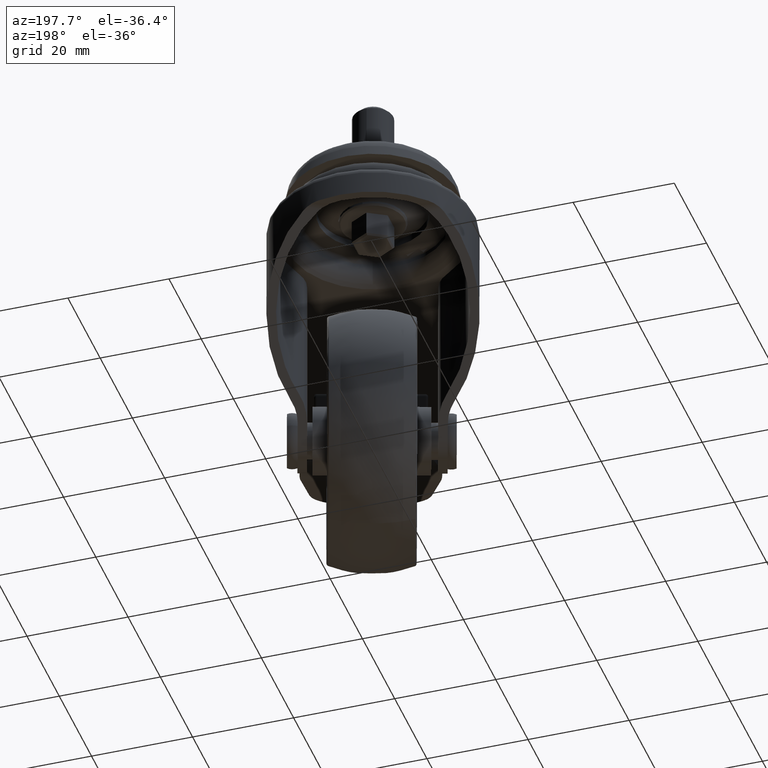
[diagram: clean part render]
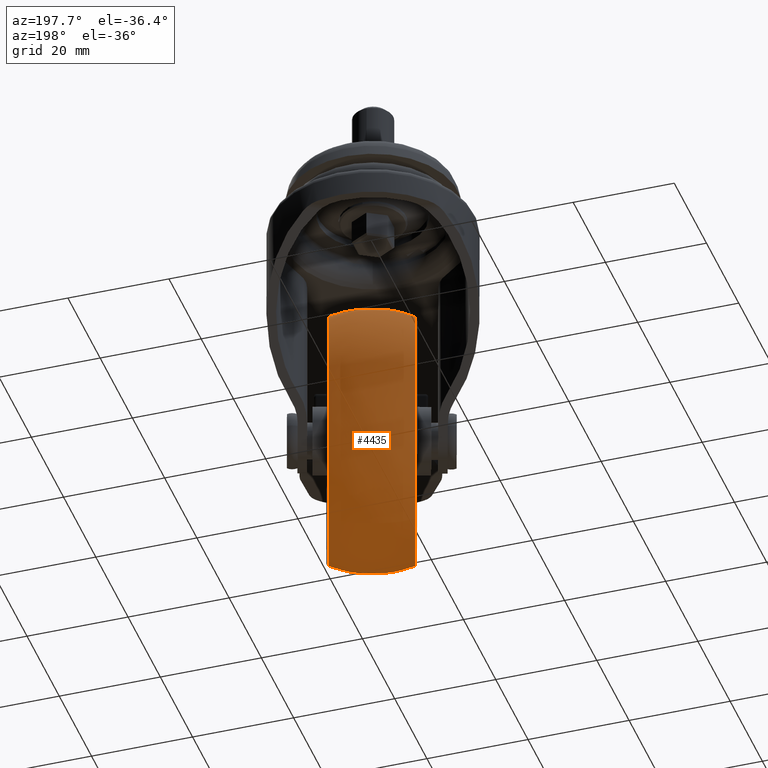
[diagram: same view with one face highlighted and labeled with its STEP entity id]
A machine part, auxiliary view. The second image highlights one B-rep face of the part: STEP entity #4435.
In plain terms, the highlighted face is a freeform B-spline surface patch.
Its self-contained STEP definition (entity closure, byte-faithful):
#1174=FACE_OUTER_BOUND('',#1465,.T.);
#1465=EDGE_LOOP('',(#3128,#3129,#3130,#3131,#3132,#3133));
#1840=(
BOUNDED_CURVE()
B_SPLINE_CURVE(2,(#6524,#6525,#6526),.UNSPECIFIED.,.F.,.F.)
B_SPLINE_CURVE_WITH_KNOTS((3,3),(-0.34736942331283,0.347369423312172),
 .UNSPECIFIED.)
CURVE()
GEOMETRIC_REPRESENTATION_ITEM()
RATIONAL_B_SPLINE_CURVE((1.,0.940271480588971,1.))
REPRESENTATION_ITEM('')
);
#1845=CIRCLE('',#4733,23.5665155342819);
#1846=CIRCLE('',#4734,23.5665155342819);
#1847=CIRCLE('',#4735,23.5665155342819);
#1848=CIRCLE('',#4736,23.5665155342819);
#2039=VERTEX_POINT('',#6520);
#2040=VERTEX_POINT('',#6521);
#2041=VERTEX_POINT('',#6523);
#2042=VERTEX_POINT('',#6527);
#2479=EDGE_CURVE('',#2039,#2040,#1845,.T.);
#2480=EDGE_CURVE('',#2040,#2041,#1840,.T.);
#2481=EDGE_CURVE('',#2041,#2042,#1846,.T.);
#2482=EDGE_CURVE('',#2042,#2041,#1847,.T.);
#2483=EDGE_CURVE('',#2040,#2039,#1848,.T.);
#3128=ORIENTED_EDGE('',*,*,#2479,.T.);
#3129=ORIENTED_EDGE('',*,*,#2480,.T.);
#3130=ORIENTED_EDGE('',*,*,#2481,.T.);
#3131=ORIENTED_EDGE('',*,*,#2482,.T.);
#3132=ORIENTED_EDGE('',*,*,#2480,.F.);
#3133=ORIENTED_EDGE('',*,*,#2483,.T.);
#4426=(
BOUNDED_SURFACE()
B_SPLINE_SURFACE(2,2,((#6493,#6494,#6495,#6496,#6497,#6498,#6499,#6500,
#6501),(#6502,#6503,#6504,#6505,#6506,#6507,#6508,#6509,#6510),(#6511,#6512,
#6513,#6514,#6515,#6516,#6517,#6518,#6519)),.UNSPECIFIED.,.F.,.T.,.F.)
B_SPLINE_SURFACE_WITH_KNOTS((3,3),(3,2,2,2,3),(-0.347369423312172,0.34736942331283),
(-3.14159265358979,-1.5707963267949,0.,1.5707963267949,3.14159265358979),
 .UNSPECIFIED.)
GEOMETRIC_REPRESENTATION_ITEM()
RATIONAL_B_SPLINE_SURFACE(((1.,0.707106781186548,1.,0.707106781186548,1.,
0.707106781186548,1.,0.707106781186548,1.),(0.940271480588971,0.664872340080777,
0.940271480588971,0.664872340080777,0.940271480588971,0.664872340080777,
0.940271480588971,0.664872340080777,0.940271480588971),(1.,0.707106781186548,
1.,0.707106781186548,1.,0.707106781186548,1.,0.707106781186548,1.)))
REPRESENTATION_ITEM('')
SURFACE()
);
#4435=ADVANCED_FACE('',(#1174),#4426,.F.);
#4733=AXIS2_PLACEMENT_3D('',#6522,#5222,#5223);
#4734=AXIS2_PLACEMENT_3D('',#6528,#5224,#5225);
#4735=AXIS2_PLACEMENT_3D('',#6529,#5226,#5227);
#4736=AXIS2_PLACEMENT_3D('',#6530,#5228,#5229);
#5222=DIRECTION('center_axis',(1.,0.,0.));
#5223=DIRECTION('ref_axis',(0.,0.,1.));
#5224=DIRECTION('center_axis',(-1.,0.,0.));
#5225=DIRECTION('ref_axis',(0.,0.,1.));
#5226=DIRECTION('center_axis',(-1.,0.,0.));
#5227=DIRECTION('ref_axis',(0.,0.,1.));
#5228=DIRECTION('center_axis',(1.,0.,0.));
#5229=DIRECTION('ref_axis',(0.,0.,1.));
#6493=CARTESIAN_POINT('Ctrl Pts',(61.9589497495971,-14.5757728368983,-23.5665155341527));
#6494=CARTESIAN_POINT('Ctrl Pts',(61.9589497492095,-38.1422883710363,-23.5665155341527));
#6495=CARTESIAN_POINT('Ctrl Pts',(61.9589497492519,-38.1422883710363,-1.46808964877958E-11));
#6496=CARTESIAN_POINT('Ctrl Pts',(61.9589497492943,-38.1422883710363,23.5665155341234));
#6497=CARTESIAN_POINT('Ctrl Pts',(61.9589497496819,-14.5757728368983,23.5665155341234));
#6498=CARTESIAN_POINT('Ctrl Pts',(61.9589497500694,8.9907426972398,23.5665155341234));
#6499=CARTESIAN_POINT('Ctrl Pts',(61.958949750027,8.9907426972398,-1.46808964891904E-11));
#6500=CARTESIAN_POINT('Ctrl Pts',(61.9589497499846,8.9907426972398,-23.5665155341527));
#6501=CARTESIAN_POINT('Ctrl Pts',(61.9589497495971,-14.5757728368983,-23.5665155341527));
#6502=CARTESIAN_POINT('Ctrl Pts',(53.7887369832252,-14.5757728367639,-26.5245431723271));
#6503=CARTESIAN_POINT('Ctrl Pts',(53.788736982789,-41.100316009091,-26.5245431723271));
#6504=CARTESIAN_POINT('Ctrl Pts',(53.7887369828367,-41.100316009091,1.98170481086409E-14));
#6505=CARTESIAN_POINT('Ctrl Pts',(53.7887369828844,-41.100316009091,26.5245431723272));
#6506=CARTESIAN_POINT('Ctrl Pts',(53.7887369833206,-14.5757728367639,26.5245431723272));
#6507=CARTESIAN_POINT('Ctrl Pts',(53.7887369837568,11.9487703355633,26.5245431723272));
#6508=CARTESIAN_POINT('Ctrl Pts',(53.7887369837091,11.9487703355633,1.98170465390215E-14));
#6509=CARTESIAN_POINT('Ctrl Pts',(53.7887369836614,11.9487703355633,-26.5245431723271));
#6510=CARTESIAN_POINT('Ctrl Pts',(53.7887369832252,-14.5757728367639,-26.5245431723271));
#6511=CARTESIAN_POINT('Ctrl Pts',(45.6185242168659,-14.5757728366295,-23.566515534118));
#6512=CARTESIAN_POINT('Ctrl Pts',(45.6185242164783,-38.1422883707622,-23.566515534118));
#6513=CARTESIAN_POINT('Ctrl Pts',(45.6185242165207,-38.1422883707622,1.47205305838345E-11));
#6514=CARTESIAN_POINT('Ctrl Pts',(45.6185242165631,-38.1422883707622,23.5665155341474));
#6515=CARTESIAN_POINT('Ctrl Pts',(45.6185242169507,-14.5757728366295,23.5665155341474));
#6516=CARTESIAN_POINT('Ctrl Pts',(45.6185242173383,8.99074269750315,23.5665155341474));
#6517=CARTESIAN_POINT('Ctrl Pts',(45.6185242172959,8.99074269750315,1.47205305824399E-11));
#6518=CARTESIAN_POINT('Ctrl Pts',(45.6185242172535,8.99074269750315,-23.566515534118));
#6519=CARTESIAN_POINT('Ctrl Pts',(45.6185242168659,-14.5757728366295,-23.566515534118));
#6520=CARTESIAN_POINT('',(45.6185242173159,-14.575772836765,23.5665155342819));
#6521=CARTESIAN_POINT('',(45.6185242168659,-14.5757728366295,-23.566515534118));
#6522=CARTESIAN_POINT('Origin',(45.6185242173159,-14.575772836765,0.));
#6523=CARTESIAN_POINT('',(61.9589497495971,-14.5757728368983,-23.5665155341527));
#6524=CARTESIAN_POINT('Ctrl Pts',(45.6185242168659,-14.5757728366295,-23.566515534118));
#6525=CARTESIAN_POINT('Ctrl Pts',(53.7887369832252,-14.5757728367639,-26.5245431723271));
#6526=CARTESIAN_POINT('Ctrl Pts',(61.9589497495971,-14.5757728368983,-23.5665155341527));
#6527=CARTESIAN_POINT('',(61.9589497492307,-14.575772836765,23.5665155342819));
#6528=CARTESIAN_POINT('Origin',(61.9589497492307,-14.575772836765,0.));
#6529=CARTESIAN_POINT('Origin',(61.9589497492307,-14.575772836765,0.));
#6530=CARTESIAN_POINT('Origin',(45.6185242173159,-14.575772836765,0.));